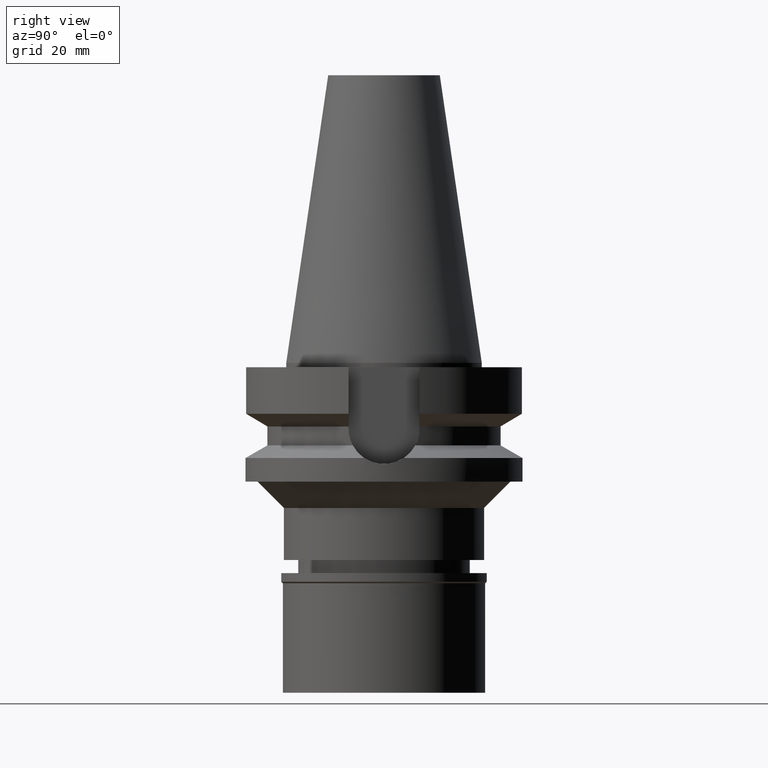
[diagram: clean part render]
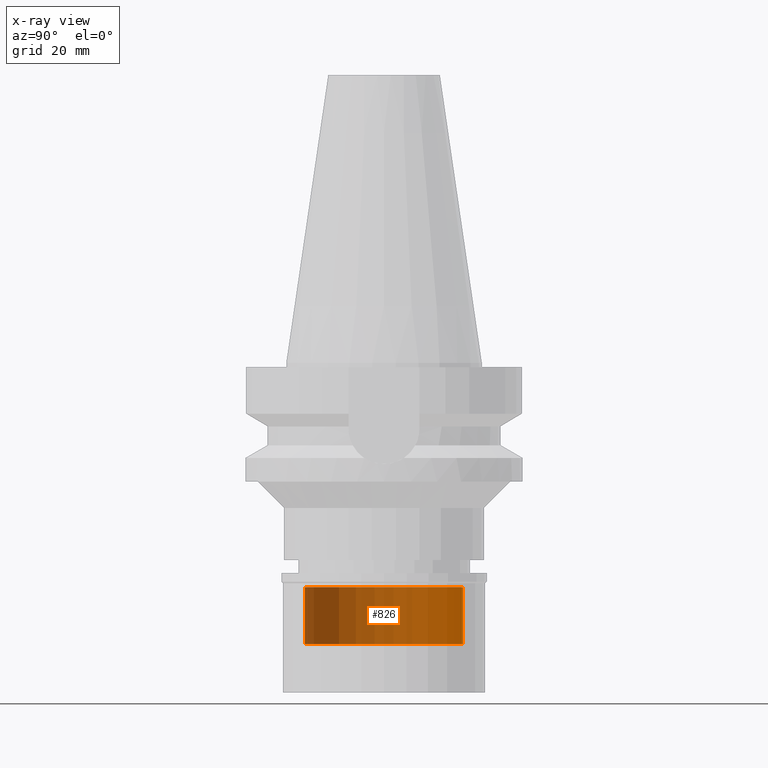
[diagram: x-ray — body ghosted, one internal face saturated and labeled with its STEP entity id]
A machine part, right view, then the same camera in x-ray: the body is ghosted and one INTERNAL B-rep face — a face not visible from any outside direction — is saturated and labeled: STEP entity #826.
In plain terms, the highlighted cylindrical surface (partial cylindrical patch) has radius 18 mm, axis along (0, 0, -1).
Its self-contained STEP definition (entity closure, byte-faithful):
#50 = CIRCLE ( 'NONE', #1754, 18.00000000000000000 ) ;
#69 = DIRECTION ( 'NONE',  ( 0.0000000000000000000, 1.000000000000000000, 0.0000000000000000000 ) ) ;
#144 = EDGE_LOOP ( 'NONE', ( #1388, #576, #521, #1302 ) ) ;
#208 = LINE ( 'NONE', #1115, #1250 ) ;
#219 = VERTEX_POINT ( 'NONE', #1488 ) ;
#368 = EDGE_CURVE ( 'NONE', #2451, #1834, #208, .T. ) ;
#502 = DIRECTION ( 'NONE',  ( 0.0000000000000000000, -1.000000000000000000, 0.0000000000000000000 ) ) ;
#521 = ORIENTED_EDGE ( 'NONE', *, *, #1526, .T. ) ;
#533 = EDGE_CURVE ( 'NONE', #803, #219, #1422, .T. ) ;
#576 = ORIENTED_EDGE ( 'NONE', *, *, #533, .F. ) ;
#672 = CARTESIAN_POINT ( 'NONE',  ( 0.0000000000000000000, -18.00000000000000000, -51.00000000000000000 ) ) ;
#714 = CARTESIAN_POINT ( 'NONE',  ( 0.0000000000000000000, 18.00000000000000000, -51.00000000000000000 ) ) ;
#769 = VECTOR ( 'NONE', #2130, 1000.000000000000000 ) ;
#782 = CARTESIAN_POINT ( 'NONE',  ( 0.0000000000000000000, 0.0000000000000000000, -64.00000000000000000 ) ) ;
#803 = VERTEX_POINT ( 'NONE', #2751 ) ;
#826 = ADVANCED_FACE ( 'NONE', ( #1815 ), #1306, .T. ) ;
#955 = DIRECTION ( 'NONE',  ( 0.0000000000000000000, 0.0000000000000000000, -1.000000000000000000 ) ) ;
#1072 = AXIS2_PLACEMENT_3D ( 'NONE', #2979, #3009, #2315 ) ;
#1115 = CARTESIAN_POINT ( 'NONE',  ( 0.0000000000000000000, 18.00000000000000000, -51.00000000000000000 ) ) ;
#1250 = VECTOR ( 'NONE', #1360, 1000.000000000000000 ) ;
#1302 = ORIENTED_EDGE ( 'NONE', *, *, #368, .T. ) ;
#1306 = CYLINDRICAL_SURFACE ( 'NONE', #1072, 18.00000000000000000 ) ;
#1360 = DIRECTION ( 'NONE',  ( 0.0000000000000000000, 0.0000000000000000000, -1.000000000000000000 ) ) ;
#1388 = ORIENTED_EDGE ( 'NONE', *, *, #2808, .T. ) ;
#1422 = LINE ( 'NONE', #672, #769 ) ;
#1488 = CARTESIAN_POINT ( 'NONE',  ( 0.0000000000000000000, -18.00000000000000000, -64.00000000000000000 ) ) ;
#1526 = EDGE_CURVE ( 'NONE', #803, #2451, #1621, .T. ) ;
#1621 = CIRCLE ( 'NONE', #2410, 18.00000000000000000 ) ;
#1643 = CARTESIAN_POINT ( 'NONE',  ( 0.0000000000000000000, 0.0000000000000000000, -51.00000000000000000 ) ) ;
#1754 = AXIS2_PLACEMENT_3D ( 'NONE', #782, #1915, #69 ) ;
#1815 = FACE_OUTER_BOUND ( 'NONE', #144, .T. ) ;
#1834 = VERTEX_POINT ( 'NONE', #2655 ) ;
#1915 = DIRECTION ( 'NONE',  ( 0.0000000000000000000, 0.0000000000000000000, 1.000000000000000000 ) ) ;
#2130 = DIRECTION ( 'NONE',  ( 0.0000000000000000000, 0.0000000000000000000, -1.000000000000000000 ) ) ;
#2315 = DIRECTION ( 'NONE',  ( 0.0000000000000000000, -1.000000000000000000, 0.0000000000000000000 ) ) ;
#2410 = AXIS2_PLACEMENT_3D ( 'NONE', #1643, #955, #502 ) ;
#2451 = VERTEX_POINT ( 'NONE', #714 ) ;
#2655 = CARTESIAN_POINT ( 'NONE',  ( 0.0000000000000000000, 18.00000000000000000, -64.00000000000000000 ) ) ;
#2751 = CARTESIAN_POINT ( 'NONE',  ( 0.0000000000000000000, -18.00000000000000000, -51.00000000000000000 ) ) ;
#2808 = EDGE_CURVE ( 'NONE', #1834, #219, #50, .T. ) ;
#2979 = CARTESIAN_POINT ( 'NONE',  ( 0.0000000000000000000, 0.0000000000000000000, 0.0000000000000000000 ) ) ;
#3009 = DIRECTION ( 'NONE',  ( 0.0000000000000000000, 0.0000000000000000000, -1.000000000000000000 ) ) ;